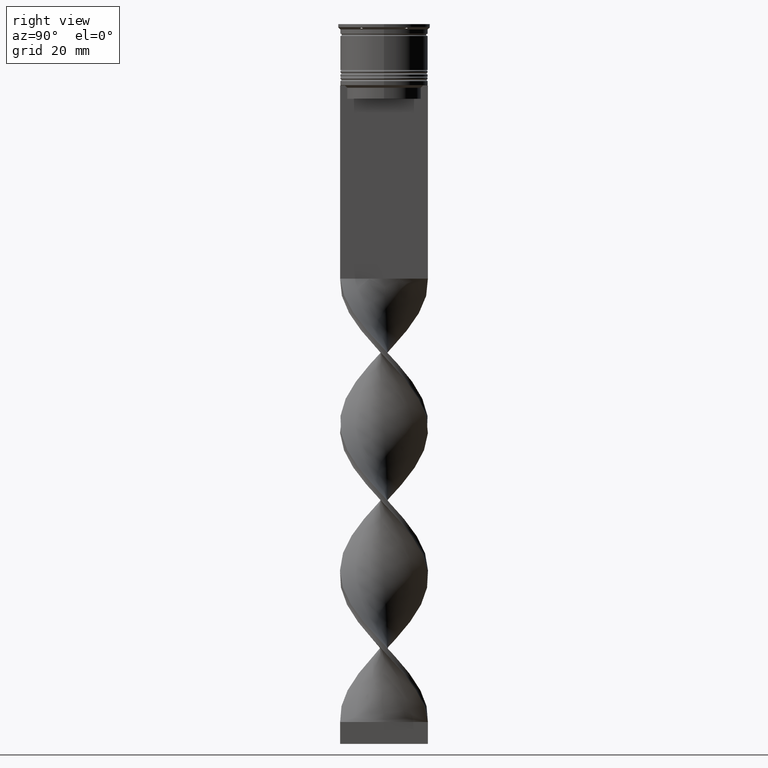
[diagram: clean part render]
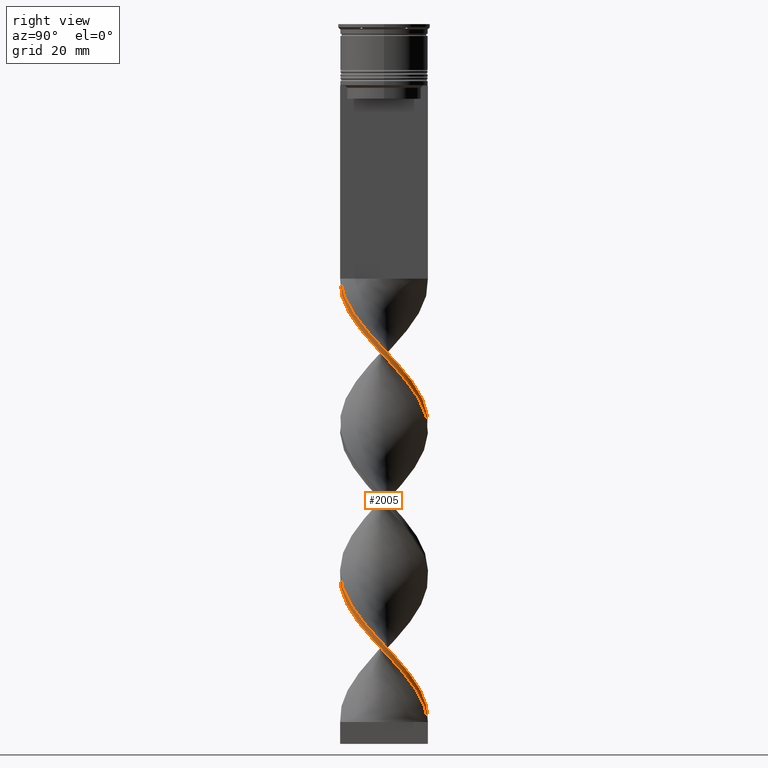
[diagram: same view with one face highlighted and labeled with its STEP entity id]
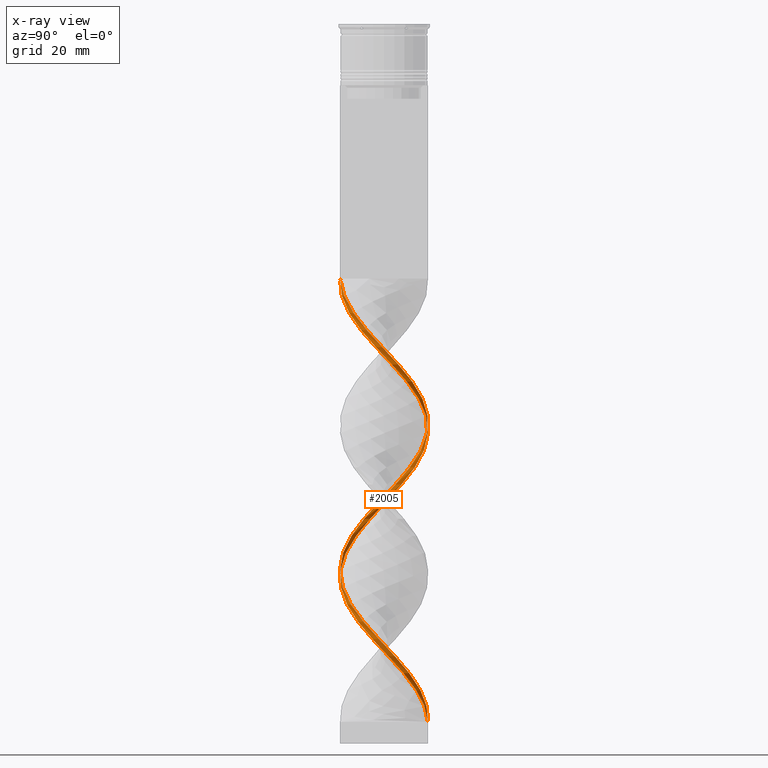
[diagram: x-ray of the same camera — body ghosted, the highlighted face saturated]
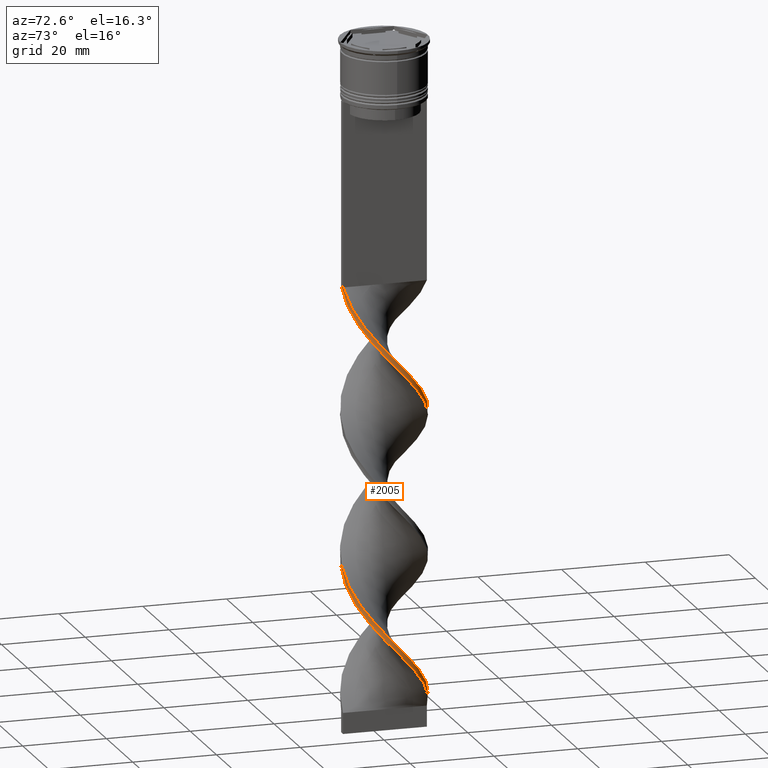
[diagram: same view with one face highlighted and labeled with its STEP entity id]
A machine part, right view. The second image highlights one B-rep face of the part: STEP entity #2005.
The next image is the same camera in x-ray: the body ghosted, the highlighted face saturated — about 1% of this face is hidden behind the body in this view.
A second angle (auxiliary view) of the same face is appended — the face is thin or edge-on in the first view.
In plain terms, the highlighted face is a freeform B-spline surface patch.
Its self-contained STEP definition (entity closure, byte-faithful):
#6 = CARTESIAN_POINT ( 'NONE',  ( -8.578000064855068274, 5.300124413240425270, -101.7666666666666515 ) ) ;
#10 = CARTESIAN_POINT ( 'NONE',  ( 2.389970062597715383, -9.795991374453498324, -61.36666666666666003 ) ) ;
#27 = CARTESIAN_POINT ( 'NONE',  ( -9.278802417170330941, -3.803462330970838856, -111.8666666666666742 ) ) ;
#29 = CARTESIAN_POINT ( 'NONE',  ( 3.382207337526053514, -9.440507058732864110, -62.48888888888889426 ) ) ;
#35 = ORIENTED_EDGE ( 'NONE', *, *, #556, .T. ) ;
#36 = CARTESIAN_POINT ( 'NONE',  ( 7.933296209543089006, -6.133947444480539524, -66.97777777777777430 ) ) ;
#48 = CARTESIAN_POINT ( 'NONE',  ( -0.3010423526567735375, -10.07882817644926376, -124.2111111111111370 ) ) ;
#67 = VECTOR ( 'NONE', #1589, 1000.000000000000000 ) ;
#70 = CARTESIAN_POINT ( 'NONE',  ( 1.801042352656767820, 9.921171823550748670, -157.8777777777777942 ) ) ;
#71 = CARTESIAN_POINT ( 'NONE',  ( 6.929600300004804758, 7.248664682696628780, -150.0222222222222115 ) ) ;
#76 = CARTESIAN_POINT ( 'NONE',  ( -7.288592354231117731, -6.967770475720650225, -117.4777777777777885 ) ) ;
#91 = CARTESIAN_POINT ( 'NONE',  ( -8.879042417511829655, 4.778703763208845601, -104.0111111111111200 ) ) ;
#96 = CARTESIAN_POINT ( 'NONE',  ( -6.167734941832652140, 7.976995022925438050, -99.52222222222223991 ) ) ;
#99 = CARTESIAN_POINT ( 'NONE',  ( 2.812727608727948247, -9.625542239224740726, -60.24444444444444713 ) ) ;
#106 = CARTESIAN_POINT ( 'NONE',  ( 9.866822606231998805, 1.791176054202738843, -143.2888888888889198 ) ) ;
#111 = CARTESIAN_POINT ( 'NONE',  ( 1.345506207627239936, -9.937409775451381932, -127.5777777777777828 ) ) ;
#115 = CARTESIAN_POINT ( 'NONE',  ( 0.7500000000000001110, -10.00000000000000533, -58.00000000000000000 ) ) ;
#117 = CARTESIAN_POINT ( 'NONE',  ( -5.680638183180775513, 8.330891533339592314, -97.27777777777779988 ) ) ;
#126 = CARTESIAN_POINT ( 'NONE',  ( 8.879042417511834984, 4.778703763208838495, -146.6555555555555657 ) ) ;
#133 = CARTESIAN_POINT ( 'NONE',  ( -9.278802417170329164, 3.803462330970842409, -105.1333333333333400 ) ) ;
#139 = CARTESIAN_POINT ( 'NONE',  ( 6.167734941832656581, 7.976995022925434498, -151.1444444444444457 ) ) ;
#146 = CARTESIAN_POINT ( 'NONE',  ( 10.05508279563516716, -0.7541312096726379144, -74.83333333333334281 ) ) ;
#171 = CARTESIAN_POINT ( 'NONE',  ( 10.02361530113347854, -0.2993932111503322391, -141.0444444444444514 ) ) ;
#181 = CARTESIAN_POINT ( 'NONE',  ( -10.05508279563516716, 0.7541312096726391356, -108.5000000000000000 ) ) ;
#193 = CARTESIAN_POINT ( 'NONE',  ( 2.812727608727948247, -9.625542239224740726, -60.24444444444444713 ) ) ;
#196 = CARTESIAN_POINT ( 'NONE',  ( -9.278802417170330941, -3.803462330970838856, -111.8666666666666742 ) ) ;
#208 = CARTESIAN_POINT ( 'NONE',  ( 8.879042417511833207, -4.778703763208840272, -137.6777777777777487 ) ) ;
#221 = CARTESIAN_POINT ( 'NONE',  ( -4.374444612454396974, -9.085022743012226343, -119.7222222222222143 ) ) ;
#231 = CARTESIAN_POINT ( 'NONE',  ( 4.752525523989956646, 8.830402094119161660, -154.5111111111111200 ) ) ;
#287 = CARTESIAN_POINT ( 'NONE',  ( -3.382207337526060620, -9.440507058732860557, -120.8444444444444485 ) ) ;
#289 = CARTESIAN_POINT ( 'NONE',  ( 7.691465658176951159, -6.520334342467825728, -68.10000000000000853 ) ) ;
#306 = CARTESIAN_POINT ( 'NONE',  ( 6.929600300004804758, 7.248664682696628780, -82.68888888888889710 ) ) ;
#309 = CARTESIAN_POINT ( 'NONE',  ( 1.345506207627239936, -9.937409775451381932, -60.24444444444444713 ) ) ;
#324 = CARTESIAN_POINT ( 'NONE',  ( -7.288592354231109738, 6.967770475720659107, -99.52222222222223991 ) ) ;
#347 = CARTESIAN_POINT ( 'NONE',  ( 5.680638183180779954, 8.330891533339588761, -153.3888888888889142 ) ) ;
#348 = CARTESIAN_POINT ( 'NONE',  ( 0.3010423526567679309, 10.07882817644926376, -90.54444444444445139 ) ) ;
#368 = CARTESIAN_POINT ( 'NONE',  ( 2.812727608727948247, -9.625542239224740726, -127.5777777777777828 ) ) ;
#372 = CARTESIAN_POINT ( 'NONE',  ( -0.7499999999999998890, -10.00000000000000533, -58.00000000000000000 ) ) ;
#388 = CARTESIAN_POINT ( 'NONE',  ( -5.271089777143522781, 8.531008882968833973, -98.40000000000001990 ) ) ;
#392 = CARTESIAN_POINT ( 'NONE',  ( 10.02361530113347854, 0.2993932111503289084, -143.2888888888889198 ) ) ;
#399 = CARTESIAN_POINT ( 'NONE',  ( 1.345506207627244155, 9.937409775451381932, -89.42222222222223138 ) ) ;
#411 = CARTESIAN_POINT ( 'NONE',  ( -7.691465658176949383, 6.520334342467825728, -101.7666666666666515 ) ) ;
#415 = CARTESIAN_POINT ( 'NONE',  ( 9.492508010833715204, 3.400837481082922498, -146.6555555555555657 ) ) ;
#427 = CARTESIAN_POINT ( 'NONE',  ( 8.879042417511833207, -4.778703763208840272, -70.34444444444443434 ) ) ;
#431 = CARTESIAN_POINT ( 'NONE',  ( -8.879042417511829655, 4.778703763208845601, -104.0111111111111057 ) ) ;
#443 = CARTESIAN_POINT ( 'NONE',  ( 4.752525523989956646, 8.830402094119161660, -87.17777777777779136 ) ) ;
#447 = CARTESIAN_POINT ( 'NONE',  ( 9.278802417170329164, -3.803462330970841521, -138.8000000000000114 ) ) ;
#460 = CARTESIAN_POINT ( 'NONE',  ( 6.167734941832655693, 7.976995022925434498, -151.1444444444444457 ) ) ;
#469 = CARTESIAN_POINT ( 'NONE',  ( -9.035254037844390851, 4.350480947161678102, -102.8888888888888857 ) ) ;
#481 = CARTESIAN_POINT ( 'NONE',  ( 7.691465658176951159, 6.520334342467823951, -148.8999999999999773 ) ) ;
#492 = CARTESIAN_POINT ( 'NONE',  ( 2.389970062597715383, -9.795991374453498324, -128.6999999999999886 ) ) ;
#500 = CARTESIAN_POINT ( 'NONE',  ( 8.578000064855070050, -5.300124413240424381, -135.4333333333333371 ) ) ;
#512 = CARTESIAN_POINT ( 'NONE',  ( 3.824412864799132450, 9.329912654898736335, -155.6333333333333258 ) ) ;
#517 = CARTESIAN_POINT ( 'NONE',  ( -0.7499999999999988898, 10.00000000000000533, -159.0000000000000000 ) ) ;
#523 = CARTESIAN_POINT ( 'NONE',  ( -8.578000064855068274, 5.300124413240425270, -101.7666666666666515 ) ) ;
#537 = CARTESIAN_POINT ( 'NONE',  ( -7.933296209543092559, -6.133947444480535971, -116.3555555555555685 ) ) ;
#552 = CARTESIAN_POINT ( 'NONE',  ( 9.742327908732752562, 2.376877556528110169, -145.5333333333333599 ) ) ;
#556 = EDGE_CURVE ( 'NONE', #2036, #1169, #2548, .T. ) ;
#577 = CARTESIAN_POINT ( 'NONE',  ( -9.678562416828828674, -2.828220898732835220, -110.7444444444444542 ) ) ;
#583 = CARTESIAN_POINT ( 'NONE',  ( 0.2500000000000011102, 10.00000000000000533, -159.0000000000000000 ) ) ;
#599 = CARTESIAN_POINT ( 'NONE',  ( 6.484615268705946178, 7.649331004530122158, -152.2666666666666799 ) ) ;
#600 = CARTESIAN_POINT ( 'NONE',  ( 10.05508279563516716, 0.7541312096726368042, -74.83333333333334281 ) ) ;
#604 = CARTESIAN_POINT ( 'NONE',  ( 9.035254037844392627, 4.350480947161671885, -80.44444444444445708 ) ) ;
#619 = CARTESIAN_POINT ( 'NONE',  ( 0.7500000000000001110, -10.00000000000000533, -125.3333333333333570 ) ) ;
#635 = CARTESIAN_POINT ( 'NONE',  ( 7.933296209543089006, -6.133947444480539524, -66.97777777777777430 ) ) ;
#659 = CARTESIAN_POINT ( 'NONE',  ( -7.691465658176951159, -6.520334342467823063, -115.2333333333333343 ) ) ;
#674 = CARTESIAN_POINT ( 'NONE',  ( 8.285254037844389075, -5.649519052838332556, -69.22222222222222854 ) ) ;
#678 = CARTESIAN_POINT ( 'NONE',  ( -9.492508010833716980, -3.400837481082918501, -112.9888888888888943 ) ) ;
#682 = CARTESIAN_POINT ( 'NONE',  ( 6.484615268705944402, -7.649331004530123934, -64.73333333333333428 ) ) ;
#691 = CARTESIAN_POINT ( 'NONE',  ( 4.374444612454390757, -9.085022743012229895, -63.61111111111111427 ) ) ;
#695 = CARTESIAN_POINT ( 'NONE',  ( 10.05508279563516716, -0.7541312096726379144, -142.1666666666666856 ) ) ;
#700 = CARTESIAN_POINT ( 'NONE',  ( 9.492508010833715204, -3.400837481082924718, -70.34444444444444855 ) ) ;
#709 = CARTESIAN_POINT ( 'NONE',  ( 9.866822606231998805, -1.791176054202742174, -73.71111111111112280 ) ) ;
#713 = CARTESIAN_POINT ( 'NONE',  ( -3.824412864799134226, -9.329912654898734559, -121.9666666666666544 ) ) ;
#716 = CARTESIAN_POINT ( 'NONE',  ( 2.389970062597715827, 9.795991374453498324, -88.29999999999998295 ) ) ;
#725 = CARTESIAN_POINT ( 'NONE',  ( 7.288592354231114179, 6.967770475720654666, -83.81111111111111711 ) ) ;
#729 = CARTESIAN_POINT ( 'NONE',  ( -8.578000064855068274, -5.300124413240421717, -115.2333333333333343 ) ) ;
#733 = CARTESIAN_POINT ( 'NONE',  ( 9.492508010833715204, -3.400837481082924718, -137.6777777777777487 ) ) ;
#740 = CARTESIAN_POINT ( 'NONE',  ( 1.345506207627244155, 9.937409775451381932, -156.7555555555555600 ) ) ;
#748 = CARTESIAN_POINT ( 'NONE',  ( -10.05508279563516716, -0.7541312096726355829, -108.5000000000000000 ) ) ;
#759 = CARTESIAN_POINT ( 'NONE',  ( 9.035254037844392627, 4.350480947161671885, -147.7777777777777715 ) ) ;
#772 = CARTESIAN_POINT ( 'NONE',  ( -10.02361530113348032, 0.2993932111503379012, -107.3777777777777942 ) ) ;
#781 = CARTESIAN_POINT ( 'NONE',  ( -9.866822606231997028, 1.791176054202747725, -107.3777777777777942 ) ) ;
#788 = ORIENTED_EDGE ( 'NONE', *, *, #939, .T. ) ;
#789 = CARTESIAN_POINT ( 'NONE',  ( 8.285254037844390851, 5.649519052838329891, -147.7777777777777715 ) ) ;
#799 = CARTESIAN_POINT ( 'NONE',  ( 10.02361530113347854, 0.2993932111503289084, -143.2888888888889198 ) ) ;
#805 = CARTESIAN_POINT ( 'NONE',  ( 9.278802417170330941, 3.803462330970840632, -145.5333333333333599 ) ) ;
#819 = CARTESIAN_POINT ( 'NONE',  ( 8.285254037844389075, -5.649519052838332556, -136.5555555555555713 ) ) ;
#885 = CARTESIAN_POINT ( 'NONE',  ( 9.492508010833713428, -3.400837481082924718, -70.34444444444443434 ) ) ;
#891 = CARTESIAN_POINT ( 'NONE',  ( 9.742327908732752562, 2.376877556528110169, -78.20000000000000284 ) ) ;
#909 = CARTESIAN_POINT ( 'NONE',  ( -10.05508279563516716, -0.7541312096726356939, -108.5000000000000000 ) ) ;
#912 = CARTESIAN_POINT ( 'NONE',  ( 0.3010423526567652663, -10.07882817644926376, -59.12222222222222712 ) ) ;
#929 = CARTESIAN_POINT ( 'NONE',  ( -10.02361530113348032, 0.2993932111503379012, -107.3777777777777942 ) ) ;
#939 = EDGE_CURVE ( 'NONE', #3363, #2036, #2531, .T. ) ;
#946 = CARTESIAN_POINT ( 'NONE',  ( 7.288592354231114179, 6.967770475720654666, -151.1444444444444457 ) ) ;
#947 = CARTESIAN_POINT ( 'NONE',  ( 9.035254037844390851, -4.350480947161673662, -69.22222222222222854 ) ) ;
#970 = CARTESIAN_POINT ( 'NONE',  ( -0.7499999999999988898, 10.00000000000000533, -159.0000000000000000 ) ) ;
#973 = CARTESIAN_POINT ( 'NONE',  ( -9.035254037844394404, -4.350480947161666556, -114.1111111111111285 ) ) ;
#979 = CARTESIAN_POINT ( 'NONE',  ( 5.271089777143525446, 8.531008882968833973, -84.93333333333333712 ) ) ;
#985 = CARTESIAN_POINT ( 'NONE',  ( 9.742327908732750785, -2.376877556528111057, -138.8000000000000114 ) ) ;
#989 = CARTESIAN_POINT ( 'NONE',  ( 1.801042352656767820, 9.921171823550748670, -90.54444444444445139 ) ) ;
#993 = CARTESIAN_POINT ( 'NONE',  ( -2.812727608727946027, 9.625542239224740726, -93.91111111111111143 ) ) ;
#999 = CARTESIAN_POINT ( 'NONE',  ( -9.678562416828825121, 2.828220898732847211, -106.2555555555555742 ) ) ;
#1005 = CARTESIAN_POINT ( 'NONE',  ( -10.05508279563516716, 0.7541312096726390246, -108.5000000000000000 ) ) ;
#1011 = CARTESIAN_POINT ( 'NONE',  ( 9.992147806631788143, -1.352917631973299173, -72.58888888888890278 ) ) ;
#1020 = VERTEX_POINT ( 'NONE', #517 ) ;
#1024 = CARTESIAN_POINT ( 'NONE',  ( 7.691465658176951159, -6.520334342467825728, -68.10000000000002274 ) ) ;
#1029 = CARTESIAN_POINT ( 'NONE',  ( -0.7499999999999998890, -10.00000000000000533, -125.3333333333333570 ) ) ;
#1033 = CARTESIAN_POINT ( 'NONE',  ( -8.879042417511836760, -4.778703763208834943, -112.9888888888888943 ) ) ;
#1042 = CARTESIAN_POINT ( 'NONE',  ( 0.7500000000000011102, 10.00000000000000533, -91.66666666666667140 ) ) ;
#1049 = CARTESIAN_POINT ( 'NONE',  ( 8.879042417511834984, 4.778703763208838495, -146.6555555555555657 ) ) ;
#1057 = CARTESIAN_POINT ( 'NONE',  ( -9.035254037844394404, -4.350480947161666556, -114.1111111111111285 ) ) ;
#1067 = CARTESIAN_POINT ( 'NONE',  ( 3.824412864799132006, -9.329912654898734559, -128.7000000000000171 ) ) ;
#1077 = CARTESIAN_POINT ( 'NONE',  ( -3.824412864799134226, -9.329912654898736335, -121.9666666666666544 ) ) ;
#1089 = CARTESIAN_POINT ( 'NONE',  ( 4.752525523989954870, -8.830402094119163436, -129.8222222222222229 ) ) ;
#1095 = CARTESIAN_POINT ( 'NONE',  ( 1.345506207627239936, -9.937409775451381932, -127.5777777777777828 ) ) ;
#1101 = CARTESIAN_POINT ( 'NONE',  ( 0.3010423526567678754, 10.07882817644926376, -157.8777777777777942 ) ) ;
#1111 = CARTESIAN_POINT ( 'NONE',  ( -9.742327908732752562, -2.376877556528108837, -111.8666666666666742 ) ) ;
#1169 = VERTEX_POINT ( 'NONE', #3396 ) ;
#1181 = CARTESIAN_POINT ( 'NONE',  ( 9.742327908732750785, -2.376877556528111057, -71.46666666666668277 ) ) ;
#1193 = ORIENTED_EDGE ( 'NONE', *, *, #3086, .F. ) ;
#1197 = CARTESIAN_POINT ( 'NONE',  ( 3.824412864799132450, 9.329912654898734559, -155.6333333333333542 ) ) ;
#1200 = CARTESIAN_POINT ( 'NONE',  ( 1.801042352656765155, -9.921171823550746893, -126.4555555555555628 ) ) ;
#1205 = CARTESIAN_POINT ( 'NONE',  ( 5.680638183180779954, 8.330891533339588761, -86.05555555555557135 ) ) ;
#1222 = CARTESIAN_POINT ( 'NONE',  ( 7.691465658176951159, 6.520334342467823951, -81.56666666666664867 ) ) ;
#1241 = CARTESIAN_POINT ( 'NONE',  ( 3.382207337526056179, 9.440507058732862333, -87.17777777777779136 ) ) ;
#1244 = CARTESIAN_POINT ( 'NONE',  ( 4.374444612454390757, -9.085022743012229895, -63.61111111111112137 ) ) ;
#1249 = CARTESIAN_POINT ( 'NONE',  ( 9.742327908732750785, -2.376877556528111057, -71.46666666666668277 ) ) ;
#1259 = CARTESIAN_POINT ( 'NONE',  ( -6.167734941832660134, -7.976995022925430945, -117.4777777777777885 ) ) ;
#1264 = CARTESIAN_POINT ( 'NONE',  ( 0.7500000000000011102, 10.00000000000000533, -91.66666666666667140 ) ) ;
#1272 = CARTESIAN_POINT ( 'NONE',  ( 9.678562416828828674, 2.828220898732840993, -77.07777777777778283 ) ) ;
#1285 = CARTESIAN_POINT ( 'NONE',  ( 9.678562416828826898, 2.828220898732840549, -144.4111111111111541 ) ) ;
#1289 = CARTESIAN_POINT ( 'NONE',  ( -2.812727608727953577, -9.625542239224740726, -123.0888888888888886 ) ) ;
#1302 = CARTESIAN_POINT ( 'NONE',  ( 3.382207337526056179, 9.440507058732862333, -154.5111111111111200 ) ) ;
#1306 = CARTESIAN_POINT ( 'NONE',  ( -3.382207337526049962, 9.440507058732864110, -96.15555555555556566 ) ) ;
#1317 = CARTESIAN_POINT ( 'NONE',  ( 2.389970062597715827, 9.795991374453498324, -155.6333333333333258 ) ) ;
#1322 = CARTESIAN_POINT ( 'NONE',  ( 3.382207337526053514, -9.440507058732864110, -129.8222222222222229 ) ) ;
#1327 = CARTESIAN_POINT ( 'NONE',  ( 7.288592354231111514, -6.967770475720657330, -65.85555555555555429 ) ) ;
#1339 = CARTESIAN_POINT ( 'NONE',  ( 0.3010423526567652663, -10.07882817644926376, -59.12222222222222712 ) ) ;
#1342 = CARTESIAN_POINT ( 'NONE',  ( 4.752525523989954870, -8.830402094119163436, -62.48888888888889426 ) ) ;
#1345 = CARTESIAN_POINT ( 'NONE',  ( 9.678562416828826898, -2.828220898732844102, -139.9222222222222172 ) ) ;
#1350 = CARTESIAN_POINT ( 'NONE',  ( 5.271089777143525446, 8.531008882968833973, -152.2666666666666799 ) ) ;
#1358 = CARTESIAN_POINT ( 'NONE',  ( 9.035254037844392627, 4.350480947161671885, -80.44444444444445708 ) ) ;
#1363 = CARTESIAN_POINT ( 'NONE',  ( 9.035254037844390851, -4.350480947161673662, -136.5555555555555713 ) ) ;
#1380 = CARTESIAN_POINT ( 'NONE',  ( 9.678562416828828674, 2.828220898732840993, -144.4111111111111256 ) ) ;
#1392 = CARTESIAN_POINT ( 'NONE',  ( -10.02361530113347854, -0.2993932111503254112, -109.6222222222222342 ) ) ;
#1403 = CARTESIAN_POINT ( 'NONE',  ( 7.933296209543089006, -6.133947444480539524, -134.3111111111111313 ) ) ;
#1412 = CARTESIAN_POINT ( 'NONE',  ( 2.812727608727952688, 9.625542239224740726, -156.7555555555555600 ) ) ;
#1425 = CARTESIAN_POINT ( 'NONE',  ( 9.866822606231998805, 1.791176054202738843, -143.2888888888889198 ) ) ;
#1456 = CARTESIAN_POINT ( 'NONE',  ( 9.992147806631789919, 1.352917631973295842, -144.4111111111111541 ) ) ;
#1479 = CARTESIAN_POINT ( 'NONE',  ( 5.680638183180777290, -8.330891533339590538, -63.61111111111111427 ) ) ;
#1485 = CARTESIAN_POINT ( 'NONE',  ( 5.271089777143525446, 8.531008882968833973, -84.93333333333333712 ) ) ;
#1487 = CARTESIAN_POINT ( 'NONE',  ( 8.285254037844389075, -5.649519052838332556, -69.22222222222222854 ) ) ;
#1504 = CARTESIAN_POINT ( 'NONE',  ( 6.167734941832655693, 7.976995022925434498, -83.81111111111111711 ) ) ;
#1516 = CARTESIAN_POINT ( 'NONE',  ( 1.801042352656765155, -9.921171823550746893, -59.12222222222222712 ) ) ;
#1526 = CARTESIAN_POINT ( 'NONE',  ( 9.035254037844390851, -4.350480947161673662, -136.5555555555555713 ) ) ;
#1547 = CARTESIAN_POINT ( 'NONE',  ( -7.933296209543089006, 6.133947444480543076, -100.6444444444444599 ) ) ;
#1566 = CARTESIAN_POINT ( 'NONE',  ( 3.824412864799132006, -9.329912654898736335, -128.6999999999999886 ) ) ;
#1583 = CARTESIAN_POINT ( 'NONE',  ( 7.933296209543092559, 6.133947444480536859, -150.0222222222222115 ) ) ;
#1585 = CARTESIAN_POINT ( 'NONE',  ( 4.374444612454393422, 9.085022743012228119, -153.3888888888889142 ) ) ;
#1589 = DIRECTION ( 'NONE',  ( -1.000000000000000000, 0.000000000000000000, 0.000000000000000000 ) ) ;
#1590 = CARTESIAN_POINT ( 'NONE',  ( -4.374444612454388981, 9.085022743012231672, -97.27777777777779988 ) ) ;
#1596 = CARTESIAN_POINT ( 'NONE',  ( 0.7500000000000001110, -10.00000000000000533, -58.00000000000000000 ) ) ;
#1605 = CARTESIAN_POINT ( 'NONE',  ( 9.992147806631789919, 1.352917631973295842, -77.07777777777778283 ) ) ;
#1609 = CARTESIAN_POINT ( 'NONE',  ( 9.035254037844392627, 4.350480947161671885, -147.7777777777777715 ) ) ;
#1622 = CARTESIAN_POINT ( 'NONE',  ( 9.992147806631789919, -1.352917631973299173, -139.9222222222222172 ) ) ;
#1626 = CARTESIAN_POINT ( 'NONE',  ( -9.678562416828825121, 2.828220898732847655, -106.2555555555555742 ) ) ;
#1629 = CARTESIAN_POINT ( 'NONE',  ( -1.801042352656761381, 9.921171823550750446, -92.78888888888889142 ) ) ;
#1636 = CARTESIAN_POINT ( 'NONE',  ( 3.824412864799132450, 9.329912654898736335, -88.29999999999998295 ) ) ;
#1642 = CARTESIAN_POINT ( 'NONE',  ( -6.929600300004800317, 7.248664682696634110, -100.6444444444444599 ) ) ;
#1645 = B_SPLINE_CURVE_WITH_KNOTS ( 'NONE', 3,
 ( #3007, #3244, #583, #2965 ),
 .UNSPECIFIED., .F., .F.,
 ( 4, 4 ),
 ( 0.000000000000000000, 1.000000000000000000 ),
 .UNSPECIFIED. ) ;
#1662 = CARTESIAN_POINT ( 'NONE',  ( 6.929600300004801205, -7.248664682696631445, -66.97777777777777430 ) ) ;
#1667 = FACE_OUTER_BOUND ( 'NONE', #2630, .T. ) ;
#1670 = CARTESIAN_POINT ( 'NONE',  ( -7.933296209543089006, 6.133947444480543076, -100.6444444444444599 ) ) ;
#1675 = CARTESIAN_POINT ( 'NONE',  ( 5.271089777143523669, -8.531008882968833973, -132.0666666666666629 ) ) ;
#1684 = CARTESIAN_POINT ( 'NONE',  ( -9.492508010833711651, 3.400837481082930491, -104.0111111111111057 ) ) ;
#1693 = CARTESIAN_POINT ( 'NONE',  ( 4.374444612454390757, -9.085022743012229895, -130.9444444444444287 ) ) ;
#1699 = CARTESIAN_POINT ( 'NONE',  ( 2.389970062597715827, 9.795991374453498324, -155.6333333333333542 ) ) ;
#1714 = CARTESIAN_POINT ( 'NONE',  ( -1.801042352656773593, -9.921171823550746893, -124.2111111111111370 ) ) ;
#1725 = CARTESIAN_POINT ( 'NONE',  ( -7.691465658176951159, -6.520334342467823063, -115.2333333333333343 ) ) ;
#1732 = CARTESIAN_POINT ( 'NONE',  ( -5.680638183180781731, -8.330891533339586985, -119.7222222222222143 ) ) ;
#1780 = CARTESIAN_POINT ( 'NONE',  ( -5.680638183180775513, 8.330891533339592314, -97.27777777777778567 ) ) ;
#1786 = CARTESIAN_POINT ( 'NONE',  ( 6.167734941832653917, -7.976995022925438050, -65.85555555555555429 ) ) ;
#1803 = CARTESIAN_POINT ( 'NONE',  ( -9.992147806631789919, 1.352917631973302282, -106.2555555555555742 ) ) ;
#1805 = CARTESIAN_POINT ( 'NONE',  ( 8.578000064855070050, 5.300124413240422605, -81.56666666666666288 ) ) ;
#1820 = CARTESIAN_POINT ( 'NONE',  ( -9.742327908732750785, 2.376877556528111946, -105.1333333333333400 ) ) ;
#1842 = CARTESIAN_POINT ( 'NONE',  ( 2.812727608727952688, 9.625542239224740726, -156.7555555555555600 ) ) ;
#1845 = CARTESIAN_POINT ( 'NONE',  ( 4.374444612454393422, 9.085022743012228119, -86.05555555555557135 ) ) ;
#1865 = CARTESIAN_POINT ( 'NONE',  ( -6.929600300004805646, -7.248664682696627892, -116.3555555555555685 ) ) ;
#1878 = CARTESIAN_POINT ( 'NONE',  ( -3.382207337526049962, 9.440507058732864110, -96.15555555555556566 ) ) ;
#1881 = CARTESIAN_POINT ( 'NONE',  ( 6.167734941832653917, -7.976995022925438050, -133.1888888888889255 ) ) ;
#1886 = CARTESIAN_POINT ( 'NONE',  ( 4.374444612454394310, 9.085022743012228119, -86.05555555555557135 ) ) ;
#1897 = CARTESIAN_POINT ( 'NONE',  ( 6.484615268705946178, 7.649331004530122158, -84.93333333333333712 ) ) ;
#1902 = CARTESIAN_POINT ( 'NONE',  ( 9.992147806631788143, 1.352917631973295620, -144.4111111111111256 ) ) ;
#1920 = CARTESIAN_POINT ( 'NONE',  ( -1.345506207627237716, 9.937409775451381932, -93.91111111111111143 ) ) ;
#1923 = CARTESIAN_POINT ( 'NONE',  ( -10.02361530113347854, -0.2993932111503254112, -109.6222222222222342 ) ) ;
#1926 = CARTESIAN_POINT ( 'NONE',  ( -0.7499999999999988898, 10.00000000000000533, -91.66666666666667140 ) ) ;
#1933 = CARTESIAN_POINT ( 'NONE',  ( 5.271089777143523669, -8.531008882968833973, -64.73333333333333428 ) ) ;
#1939 = CARTESIAN_POINT ( 'NONE',  ( -5.271089777143522781, 8.531008882968833973, -98.40000000000001990 ) ) ;
#1942 = CARTESIAN_POINT ( 'NONE',  ( 9.742327908732750785, -2.376877556528111057, -138.8000000000000114 ) ) ;
#1947 = CARTESIAN_POINT ( 'NONE',  ( 2.389970062597715383, -9.795991374453498324, -61.36666666666666003 ) ) ;
#1948 = ORIENTED_EDGE ( 'NONE', *, *, #2897, .F. ) ;
#1956 = CARTESIAN_POINT ( 'NONE',  ( -6.929600300004805646, -7.248664682696627892, -116.3555555555555685 ) ) ;
#1959 =( BOUNDED_SURFACE ( )  B_SPLINE_SURFACE ( 1, 2, ( 
 ( #115, #1516, #193, #2342, #1342, #1479, #3358, #2111, #635, #3898, #947, #885, #1181, #3006, #3917, #600, #3276, #3046, #3362, #2065, #2129, #1222, #306, #1504, #1485, #1845, #1241, #2447, #3681, #348, #2700, #3322, #2385, #2741, #2151, #1780, #2428, #324, #1547, #6, #3640, #3339, #1820, #1803, #929, #909, #3658, #577, #27, #2783, #2719, #659, #1865, #1259, #2763, #2986, #287, #3593, #3064, #48, #619, #1200, #368, #1566, #2470, #2089, #3303, #2408, #3621, #3021, #1526, #2832, #985, #1622, #2207, #3733, #106, #1285, #2848, #126, #3121, #3698, #71, #460, #3452, #1585, #1302, #1317, #740, #3100, #970 ),
 ( #2193, #1339, #2865, #1947, #3398, #691, #1933, #2232, #1662, #1024, #674, #427, #2527, #2492, #709, #146, #3438, #1605, #3151, #3381, #1358, #2176, #3134, #725, #1897, #3751, #443, #1636, #2509, #2550, #1042, #2246, #1920, #2565, #1878, #3078, #388, #3420, #2800, #411, #2816, #91, #3712, #999, #781, #181, #1392, #2919, #1111, #1982, #1057, #3234, #537, #2603, #3492, #1732, #2646, #1077, #3527, #1714, #3807, #3192, #1095, #492, #3252, #1693, #1675, #1967, #2893, #2045, #819, #208, #2281, #3467, #2259, #2300, #799, #1456, #552, #2880, #759, #2001, #2938, #3173, #3211, #3509, #231, #512, #1412, #2622, #3823 ) ),
 .UNSPECIFIED., .F., .F., .F. ) 
 B_SPLINE_SURFACE_WITH_KNOTS ( ( 2, 2 ),
 ( 3, 2, 2, 2, 2, 2, 2, 2, 2, 2, 2, 2, 2, 2, 2, 2, 2, 2, 2, 2, 2, 2, 2, 2, 2, 2, 2, 2, 2, 2, 2, 2, 2, 2, 2, 2, 2, 2, 2, 2, 2, 2, 2, 2, 2, 3 ),
 ( 0.000000000000000000, 1.000000000000000000 ),
 ( 0.000000000000000000, 0.01666666666666666644, 0.03333333333333333287, 0.05000000000000000278, 0.06666666666666666574, 0.08333333333333332871, 0.1000000000000000056, 0.1166666666666666685, 0.1333333333333333315, 0.1499999999999999944, 0.1666666666666666574, 0.1833333333333333204, 0.2000000000000000111, 0.2166666666666666741, 0.2333333333333333370, 0.2500000000000000000, 0.2666666666666666630, 0.2833333333333333259, 0.2999999999999999889, 0.3166666666666666519, 0.3333333333333333148, 0.3499999999999999778, 0.3666666666666666408, 0.3833333333333333592, 0.4000000000000000222, 0.4166666666666666852, 0.4333333333333333481, 0.4500000000000000111, 0.4666666666666666741, 0.4833333333333333370, 0.5000000000000000000, 0.5166666666666667185, 0.5333333333333333259, 0.5500000000000000444, 0.5666666666666666519, 0.5833333333333333703, 0.5999999999999999778, 0.6166666666666666963, 0.6333333333333333037, 0.6500000000000000222, 0.6666666666666666297, 0.6833333333333333481, 0.6999999999999999556, 0.7166666666666666741, 0.7333333333333332815, 0.7500000000000000000 ),
 .UNSPECIFIED. ) 
 GEOMETRIC_REPRESENTATION_ITEM ( )  RATIONAL_B_SPLINE_SURFACE ( (
 ( 1.000000000000000000, 0.9945218953682732899, 1.000000000000000000, 0.9945218953682732899, 1.000000000000000000, 0.9945218953682732899, 1.000000000000000000, 0.9945218953682732899, 1.000000000000000000, 0.9945218953682732899, 1.000000000000000000, 0.9945218953682732899, 1.000000000000000000, 0.9945218953682732899, 1.000000000000000000, 0.9945218953682732899, 1.000000000000000000, 0.9945218953682732899, 1.000000000000000000, 0.9945218953682732899, 1.000000000000000000, 0.9945218953682732899, 1.000000000000000000, 0.9945218953682732899, 1.000000000000000000, 0.9945218953682732899, 1.000000000000000000, 0.9945218953682732899, 1.000000000000000000, 0.9945218953682732899, 1.000000000000000000, 0.9945218953682732899, 1.000000000000000000, 0.9945218953682732899, 1.000000000000000000, 0.9945218953682732899, 1.000000000000000000, 0.9945218953682732899, 1.000000000000000000, 0.9945218953682732899, 1.000000000000000000, 0.9945218953682732899, 1.000000000000000000, 0.9945218953682732899, 1.000000000000000000, 0.9945218953682732899, 1.000000000000000000, 0.9945218953682732899, 1.000000000000000000, 0.9945218953682732899, 1.000000000000000000, 0.9945218953682732899, 1.000000000000000000, 0.9945218953682732899, 1.000000000000000000, 0.9945218953682732899, 1.000000000000000000, 0.9945218953682732899, 1.000000000000000000, 0.9945218953682732899, 1.000000000000000000, 0.9945218953682732899, 1.000000000000000000, 0.9945218953682732899, 1.000000000000000000, 0.9945218953682732899, 1.000000000000000000, 0.9945218953682732899, 1.000000000000000000, 0.9945218953682732899, 1.000000000000000000, 0.9945218953682732899, 1.000000000000000000, 0.9945218953682732899, 1.000000000000000000, 0.9945218953682732899, 1.000000000000000000, 0.9945218953682732899, 1.000000000000000000, 0.9945218953682732899, 1.000000000000000000, 0.9945218953682732899, 1.000000000000000000, 0.9945218953682732899, 1.000000000000000000, 0.9945218953682732899, 1.000000000000000000, 0.9945218953682732899, 1.000000000000000000, 0.9945218953682732899, 1.000000000000000000),
 ( 1.000000000000000000, 0.9945218953682732899, 1.000000000000000000, 0.9945218953682732899, 1.000000000000000000, 0.9945218953682732899, 1.000000000000000000, 0.9945218953682732899, 1.000000000000000000, 0.9945218953682732899, 1.000000000000000000, 0.9945218953682732899, 1.000000000000000000, 0.9945218953682732899, 1.000000000000000000, 0.9945218953682732899, 1.000000000000000000, 0.9945218953682732899, 1.000000000000000000, 0.9945218953682732899, 1.000000000000000000, 0.9945218953682732899, 1.000000000000000000, 0.9945218953682732899, 1.000000000000000000, 0.9945218953682732899, 1.000000000000000000, 0.9945218953682732899, 1.000000000000000000, 0.9945218953682732899, 1.000000000000000000, 0.9945218953682732899, 1.000000000000000000, 0.9945218953682732899, 1.000000000000000000, 0.9945218953682732899, 1.000000000000000000, 0.9945218953682732899, 1.000000000000000000, 0.9945218953682732899, 1.000000000000000000, 0.9945218953682732899, 1.000000000000000000, 0.9945218953682732899, 1.000000000000000000, 0.9945218953682732899, 1.000000000000000000, 0.9945218953682732899, 1.000000000000000000, 0.9945218953682732899, 1.000000000000000000, 0.9945218953682732899, 1.000000000000000000, 0.9945218953682732899, 1.000000000000000000, 0.9945218953682732899, 1.000000000000000000, 0.9945218953682732899, 1.000000000000000000, 0.9945218953682732899, 1.000000000000000000, 0.9945218953682732899, 1.000000000000000000, 0.9945218953682732899, 1.000000000000000000, 0.9945218953682732899, 1.000000000000000000, 0.9945218953682732899, 1.000000000000000000, 0.9945218953682732899, 1.000000000000000000, 0.9945218953682732899, 1.000000000000000000, 0.9945218953682732899, 1.000000000000000000, 0.9945218953682732899, 1.000000000000000000, 0.9945218953682732899, 1.000000000000000000, 0.9945218953682732899, 1.000000000000000000, 0.9945218953682732899, 1.000000000000000000, 0.9945218953682732899, 1.000000000000000000, 0.9945218953682732899, 1.000000000000000000, 0.9945218953682732899, 1.000000000000000000, 0.9945218953682732899, 1.000000000000000000) ) ) 
 REPRESENTATION_ITEM ( '' )  SURFACE ( )  );
#1967 = CARTESIAN_POINT ( 'NONE',  ( 6.167734941832653028, -7.976995022925438050, -133.1888888888889255 ) ) ;
#1974 = CARTESIAN_POINT ( 'NONE',  ( 1.801042352656765155, -9.921171823550748670, -126.4555555555555770 ) ) ;
#1982 = CARTESIAN_POINT ( 'NONE',  ( -9.492508010833716980, -3.400837481082918501, -112.9888888888888943 ) ) ;
#1984 = CARTESIAN_POINT ( 'NONE',  ( 0.7500000000000001110, -10.00000000000000533, -58.00000000000000000 ) ) ;
#1990 = CARTESIAN_POINT ( 'NONE',  ( 4.374444612454394310, 9.085022743012228119, -153.3888888888889142 ) ) ;
#2001 = CARTESIAN_POINT ( 'NONE',  ( 8.578000064855068274, 5.300124413240422605, -148.8999999999999488 ) ) ;
#2005 = ADVANCED_FACE ( 'NONE', ( #1667 ), #1959, .T. ) ;
#2036 = VERTEX_POINT ( 'NONE', #3553 ) ;
#2045 = CARTESIAN_POINT ( 'NONE',  ( 7.691465658176951159, -6.520334342467825728, -135.4333333333333371 ) ) ;
#2065 = CARTESIAN_POINT ( 'NONE',  ( 8.879042417511834984, 4.778703763208838495, -79.32222222222222285 ) ) ;
#2089 = CARTESIAN_POINT ( 'NONE',  ( 5.680638183180777290, -8.330891533339590538, -130.9444444444444287 ) ) ;
#2111 = CARTESIAN_POINT ( 'NONE',  ( 7.288592354231111514, -6.967770475720657330, -65.85555555555555429 ) ) ;
#2115 = CARTESIAN_POINT ( 'NONE',  ( 10.05508279563516716, -0.7541312096726379144, -74.83333333333332860 ) ) ;
#2129 = CARTESIAN_POINT ( 'NONE',  ( 8.285254037844390851, 5.649519052838329891, -80.44444444444445708 ) ) ;
#2149 = CARTESIAN_POINT ( 'NONE',  ( 8.578000064855070050, 5.300124413240422605, -148.8999999999999773 ) ) ;
#2151 = CARTESIAN_POINT ( 'NONE',  ( -4.752525523989951317, 8.830402094119165213, -96.15555555555556566 ) ) ;
#2166 = CARTESIAN_POINT ( 'NONE',  ( 10.02361530113347854, -0.2993932111503322391, -73.71111111111112280 ) ) ;
#2176 = CARTESIAN_POINT ( 'NONE',  ( 8.578000064855068274, 5.300124413240422605, -81.56666666666664867 ) ) ;
#2179 = CARTESIAN_POINT ( 'NONE',  ( -9.866822606231997028, 1.791176054202747725, -107.3777777777777942 ) ) ;
#2186 = CARTESIAN_POINT ( 'NONE',  ( 9.035254037844390851, -4.350480947161673662, -69.22222222222222854 ) ) ;
#2193 = CARTESIAN_POINT ( 'NONE',  ( -0.7499999999999998890, -10.00000000000000533, -58.00000000000000000 ) ) ;
#2197 = CARTESIAN_POINT ( 'NONE',  ( -1.345506207627237716, 9.937409775451381932, -93.91111111111111143 ) ) ;
#2199 = CARTESIAN_POINT ( 'NONE',  ( -4.752525523989951317, 8.830402094119165213, -96.15555555555556566 ) ) ;
#2207 = CARTESIAN_POINT ( 'NONE',  ( 10.02361530113347854, -0.2993932111503322391, -141.0444444444444514 ) ) ;
#2215 = CARTESIAN_POINT ( 'NONE',  ( -6.484615268705947067, -7.649331004530122158, -118.6000000000000085 ) ) ;
#2219 = CARTESIAN_POINT ( 'NONE',  ( 3.382207337526056179, 9.440507058732862333, -87.17777777777779136 ) ) ;
#2232 = CARTESIAN_POINT ( 'NONE',  ( 6.167734941832653028, -7.976995022925438050, -65.85555555555555429 ) ) ;
#2235 = CARTESIAN_POINT ( 'NONE',  ( -2.389970062597714495, 9.795991374453500100, -95.03333333333331723 ) ) ;
#2239 = CARTESIAN_POINT ( 'NONE',  ( -2.389970062597717604, -9.795991374453498324, -121.9666666666666544 ) ) ;
#2246 = CARTESIAN_POINT ( 'NONE',  ( -0.3010423526567608810, 10.07882817644926554, -92.78888888888889142 ) ) ;
#2252 = CARTESIAN_POINT ( 'NONE',  ( 6.929600300004804758, 7.248664682696628780, -150.0222222222222115 ) ) ;
#2259 = CARTESIAN_POINT ( 'NONE',  ( 9.866822606231998805, -1.791176054202742174, -141.0444444444444514 ) ) ;
#2270 = CARTESIAN_POINT ( 'NONE',  ( -7.288592354231109738, 6.967770475720659107, -99.52222222222223991 ) ) ;
#2281 = CARTESIAN_POINT ( 'NONE',  ( 9.278802417170329164, -3.803462330970841521, -138.8000000000000114 ) ) ;
#2290 = CARTESIAN_POINT ( 'NONE',  ( -9.992147806631788143, 1.352917631973302282, -106.2555555555555742 ) ) ;
#2300 = CARTESIAN_POINT ( 'NONE',  ( 10.05508279563516716, -0.7541312096726379144, -142.1666666666666856 ) ) ;
#2308 = CARTESIAN_POINT ( 'NONE',  ( -5.271089777143526334, -8.531008882968833973, -118.6000000000000085 ) ) ;
#2342 = CARTESIAN_POINT ( 'NONE',  ( 3.824412864799132006, -9.329912654898736335, -61.36666666666666003 ) ) ;
#2385 = CARTESIAN_POINT ( 'NONE',  ( -2.812727608727946027, 9.625542239224740726, -93.91111111111111143 ) ) ;
#2388 = CARTESIAN_POINT ( 'NONE',  ( 9.678562416828826898, -2.828220898732844102, -72.58888888888890278 ) ) ;
#2408 = CARTESIAN_POINT ( 'NONE',  ( 7.288592354231111514, -6.967770475720657330, -133.1888888888889255 ) ) ;
#2414 = CARTESIAN_POINT ( 'NONE',  ( 4.752525523989956646, 8.830402094119161660, -87.17777777777779136 ) ) ;
#2428 = CARTESIAN_POINT ( 'NONE',  ( -6.484615268705943514, 7.649331004530123934, -98.40000000000001990 ) ) ;
#2446 = CARTESIAN_POINT ( 'NONE',  ( 4.752525523989956646, 8.830402094119161660, -154.5111111111111200 ) ) ;
#2447 = CARTESIAN_POINT ( 'NONE',  ( 2.389970062597715827, 9.795991374453498324, -88.29999999999998295 ) ) ;
#2449 = CARTESIAN_POINT ( 'NONE',  ( 5.271089777143523669, -8.531008882968833973, -64.73333333333333428 ) ) ;
#2455 = CARTESIAN_POINT ( 'NONE',  ( 10.05508279563516716, 0.7541312096726368042, -74.83333333333332860 ) ) ;
#2470 = CARTESIAN_POINT ( 'NONE',  ( 4.752525523989954870, -8.830402094119163436, -129.8222222222222229 ) ) ;
#2475 = CARTESIAN_POINT ( 'NONE',  ( -0.3010423526567608810, 10.07882817644926554, -92.78888888888889142 ) ) ;
#2482 = CARTESIAN_POINT ( 'NONE',  ( 9.278802417170330941, 3.803462330970840632, -78.20000000000000284 ) ) ;
#2492 = CARTESIAN_POINT ( 'NONE',  ( 9.678562416828825121, -2.828220898732843658, -72.58888888888890278 ) ) ;
#2495 = CARTESIAN_POINT ( 'NONE',  ( 0.3010423526567652663, -10.07882817644926376, -126.4555555555555770 ) ) ;
#2509 = CARTESIAN_POINT ( 'NONE',  ( 2.812727608727952688, 9.625542239224740726, -89.42222222222223138 ) ) ;
#2513 = CARTESIAN_POINT ( 'NONE',  ( -9.742327908732752562, -2.376877556528108837, -111.8666666666666742 ) ) ;
#2518 = CARTESIAN_POINT ( 'NONE',  ( 4.752525523989954870, -8.830402094119163436, -62.48888888888889426 ) ) ;
#2527 = CARTESIAN_POINT ( 'NONE',  ( 9.278802417170329164, -3.803462330970841521, -71.46666666666668277 ) ) ;
#2531 = LINE ( 'NONE', #3081, #67 ) ;
#2534 = CARTESIAN_POINT ( 'NONE',  ( 5.271089777143523669, -8.531008882968833973, -132.0666666666666629 ) ) ;
#2540 = CARTESIAN_POINT ( 'NONE',  ( -6.484615268705943514, 7.649331004530123934, -98.40000000000001990 ) ) ;
#2548 =( BOUNDED_CURVE ( )  B_SPLINE_CURVE ( 2, ( #372, #912, #309, #10, #29, #1244, #2449, #1786, #3661, #289, #1487, #3367, #2785, #2388, #2703, #2115, #3901, #3599, #891, #3308, #604, #1805, #3324, #3008, #3922, #1205, #2414, #3385, #2836, #989, #1264, #2475, #2197, #2235, #1306, #1590, #1939, #96, #1642, #2853, #2820, #431, #133, #1626, #2179, #1005, #1923, #2805, #2513, #678, #973, #729, #3426, #76, #2215, #3716, #3124, #713, #1289, #3738, #1029, #2495, #111, #3702, #1322, #3441, #2534, #1881, #3139, #3403, #3686, #3082, #447, #1345, #2554, #695, #392, #1902, #3106, #415, #1609, #2149, #1583, #946, #599, #347, #2446, #1197, #1842, #70, #3360 ),
 .UNSPECIFIED., .F., .T. ) 
 B_SPLINE_CURVE_WITH_KNOTS ( ( 3, 2, 2, 2, 2, 2, 2, 2, 2, 2, 2, 2, 2, 2, 2, 2, 2, 2, 2, 2, 2, 2, 2, 2, 2, 2, 2, 2, 2, 2, 2, 2, 2, 2, 2, 2, 2, 2, 2, 2, 2, 2, 2, 2, 2, 3 ),
 ( 0.000000000000000000, 0.01666666666666666644, 0.03333333333333333287, 0.05000000000000000971, 0.06666666666666666574, 0.08333333333333332871, 0.1000000000000000194, 0.1166666666666666546, 0.1333333333333333315, 0.1499999999999999944, 0.1666666666666666574, 0.1833333333333333204, 0.2000000000000000389, 0.2166666666666666741, 0.2333333333333333093, 0.2500000000000000000, 0.2666666666666666630, 0.2833333333333333259, 0.2999999999999999889, 0.3166666666666666519, 0.3333333333333333148, 0.3499999999999999223, 0.3666666666666666408, 0.3833333333333333592, 0.4000000000000000777, 0.4166666666666666852, 0.4333333333333333481, 0.4500000000000000111, 0.4666666666666666186, 0.4833333333333333370, 0.5000000000000000000, 0.5166666666666667185, 0.5333333333333333259, 0.5500000000000000444, 0.5666666666666666519, 0.5833333333333333703, 0.5999999999999999778, 0.6166666666666666963, 0.6333333333333333037, 0.6500000000000000222, 0.6666666666666666297, 0.6833333333333332371, 0.6999999999999998446, 0.7166666666666666741, 0.7333333333333332815, 0.7500000000000000000 ),
 .UNSPECIFIED. ) 
 CURVE ( )  GEOMETRIC_REPRESENTATION_ITEM ( )  RATIONAL_B_SPLINE_CURVE ( ( 1.000000000000000000, 0.9945218953682732899, 1.000000000000000000, 0.9945218953682732899, 1.000000000000000000, 0.9945218953682732899, 1.000000000000000000, 0.9945218953682732899, 1.000000000000000000, 0.9945218953682732899, 1.000000000000000000, 0.9945218953682732899, 1.000000000000000000, 0.9945218953682732899, 1.000000000000000000, 0.9945218953682732899, 1.000000000000000000, 0.9945218953682732899, 1.000000000000000000, 0.9945218953682732899, 1.000000000000000000, 0.9945218953682732899, 1.000000000000000000, 0.9945218953682732899, 1.000000000000000000, 0.9945218953682732899, 1.000000000000000000, 0.9945218953682732899, 1.000000000000000000, 0.9945218953682732899, 1.000000000000000000, 0.9945218953682732899, 1.000000000000000000, 0.9945218953682732899, 1.000000000000000000, 0.9945218953682732899, 1.000000000000000000, 0.9945218953682732899, 1.000000000000000000, 0.9945218953682732899, 1.000000000000000000, 0.9945218953682732899, 1.000000000000000000, 0.9945218953682732899, 1.000000000000000000, 0.9945218953682732899, 1.000000000000000000, 0.9945218953682732899, 1.000000000000000000, 0.9945218953682732899, 1.000000000000000000, 0.9945218953682732899, 1.000000000000000000, 0.9945218953682732899, 1.000000000000000000, 0.9945218953682732899, 1.000000000000000000, 0.9945218953682732899, 1.000000000000000000, 0.9945218953682732899, 1.000000000000000000, 0.9945218953682732899, 1.000000000000000000, 0.9945218953682732899, 1.000000000000000000, 0.9945218953682732899, 1.000000000000000000, 0.9945218953682732899, 1.000000000000000000, 0.9945218953682732899, 1.000000000000000000, 0.9945218953682732899, 1.000000000000000000, 0.9945218953682732899, 1.000000000000000000, 0.9945218953682732899, 1.000000000000000000, 0.9945218953682732899, 1.000000000000000000, 0.9945218953682732899, 1.000000000000000000, 0.9945218953682732899, 1.000000000000000000, 0.9945218953682732899, 1.000000000000000000, 0.9945218953682732899, 1.000000000000000000, 0.9945218953682732899, 1.000000000000000000, 0.9945218953682732899, 1.000000000000000000 ) ) 
 REPRESENTATION_ITEM ( '' )  );
#2550 = CARTESIAN_POINT ( 'NONE',  ( 1.801042352656767820, 9.921171823550746893, -90.54444444444445139 ) ) ;
#2554 = CARTESIAN_POINT ( 'NONE',  ( 9.866822606231998805, -1.791176054202742174, -141.0444444444444514 ) ) ;
#2558 = CARTESIAN_POINT ( 'NONE',  ( -0.3010423526567735375, -10.07882817644926376, -124.2111111111111370 ) ) ;
#2565 = CARTESIAN_POINT ( 'NONE',  ( -2.389970062597714495, 9.795991374453500100, -95.03333333333331723 ) ) ;
#2593 = CARTESIAN_POINT ( 'NONE',  ( -9.742327908732750785, 2.376877556528111946, -105.1333333333333400 ) ) ;
#2603 = CARTESIAN_POINT ( 'NONE',  ( -7.288592354231117731, -6.967770475720651113, -117.4777777777777885 ) ) ;
#2613 = CARTESIAN_POINT ( 'NONE',  ( -6.167734941832661022, -7.976995022925430945, -117.4777777777777885 ) ) ;
#2622 = CARTESIAN_POINT ( 'NONE',  ( 1.801042352656767820, 9.921171823550746893, -157.8777777777777942 ) ) ;
#2630 = EDGE_LOOP ( 'NONE', ( #788, #35, #1193, #1948 ) ) ;
#2632 = CARTESIAN_POINT ( 'NONE',  ( 3.382207337526056179, 9.440507058732862333, -154.5111111111111200 ) ) ;
#2646 = CARTESIAN_POINT ( 'NONE',  ( -4.752525523989961087, -8.830402094119159884, -120.8444444444444485 ) ) ;
#2700 = CARTESIAN_POINT ( 'NONE',  ( -0.7499999999999988898, 10.00000000000000533, -91.66666666666667140 ) ) ;
#2703 = CARTESIAN_POINT ( 'NONE',  ( 9.866822606231998805, -1.791176054202742174, -73.71111111111112280 ) ) ;
#2719 = CARTESIAN_POINT ( 'NONE',  ( -8.285254037844394404, -5.649519052838325450, -114.1111111111111285 ) ) ;
#2741 = CARTESIAN_POINT ( 'NONE',  ( -3.824412864799130674, 9.329912654898738111, -95.03333333333331723 ) ) ;
#2763 = CARTESIAN_POINT ( 'NONE',  ( -5.271089777143526334, -8.531008882968833973, -118.6000000000000085 ) ) ;
#2783 = CARTESIAN_POINT ( 'NONE',  ( -8.879042417511836760, -4.778703763208835831, -112.9888888888888943 ) ) ;
#2785 = CARTESIAN_POINT ( 'NONE',  ( 9.278802417170329164, -3.803462330970841521, -71.46666666666668277 ) ) ;
#2791 = CARTESIAN_POINT ( 'NONE',  ( 9.866822606231998805, 1.791176054202738843, -75.95555555555554861 ) ) ;
#2800 = CARTESIAN_POINT ( 'NONE',  ( -6.929600300004800317, 7.248664682696634110, -100.6444444444444599 ) ) ;
#2805 = CARTESIAN_POINT ( 'NONE',  ( -9.992147806631789919, -1.352917631973290069, -110.7444444444444542 ) ) ;
#2809 = CARTESIAN_POINT ( 'NONE',  ( 0.3010423526567678754, 10.07882817644926376, -90.54444444444445139 ) ) ;
#2816 = CARTESIAN_POINT ( 'NONE',  ( -8.285254037844389075, 5.649519052838336108, -102.8888888888888857 ) ) ;
#2820 = CARTESIAN_POINT ( 'NONE',  ( -8.285254037844389075, 5.649519052838336108, -102.8888888888888857 ) ) ;
#2832 = CARTESIAN_POINT ( 'NONE',  ( 9.492508010833713428, -3.400837481082924718, -137.6777777777777487 ) ) ;
#2836 = CARTESIAN_POINT ( 'NONE',  ( 2.812727608727952688, 9.625542239224740726, -89.42222222222223138 ) ) ;
#2839 = CARTESIAN_POINT ( 'NONE',  ( -3.824412864799130674, 9.329912654898736335, -95.03333333333331723 ) ) ;
#2848 = CARTESIAN_POINT ( 'NONE',  ( 9.278802417170330941, 3.803462330970840632, -145.5333333333333599 ) ) ;
#2853 = CARTESIAN_POINT ( 'NONE',  ( -7.691465658176949383, 6.520334342467825728, -101.7666666666666515 ) ) ;
#2865 = CARTESIAN_POINT ( 'NONE',  ( 1.345506207627239936, -9.937409775451381932, -60.24444444444444713 ) ) ;
#2880 = CARTESIAN_POINT ( 'NONE',  ( 9.492508010833715204, 3.400837481082922498, -146.6555555555555657 ) ) ;
#2886 = CARTESIAN_POINT ( 'NONE',  ( -9.866822606231998805, -1.791176054202735513, -109.6222222222222342 ) ) ;
#2893 = CARTESIAN_POINT ( 'NONE',  ( 6.929600300004801205, -7.248664682696631445, -134.3111111111111313 ) ) ;
#2897 = EDGE_CURVE ( 'NONE', #3363, #1020, #2944, .T. ) ;
#2905 = CARTESIAN_POINT ( 'NONE',  ( -8.285254037844394404, -5.649519052838325450, -114.1111111111111285 ) ) ;
#2919 = CARTESIAN_POINT ( 'NONE',  ( -9.992147806631791696, -1.352917631973290069, -110.7444444444444542 ) ) ;
#2930 = CARTESIAN_POINT ( 'NONE',  ( 9.992147806631788143, -1.352917631973299173, -139.9222222222222172 ) ) ;
#2938 = CARTESIAN_POINT ( 'NONE',  ( 7.933296209543092559, 6.133947444480536859, -150.0222222222222115 ) ) ;
#2944 =( BOUNDED_CURVE ( )  B_SPLINE_CURVE ( 2, ( #1596, #3088, #99, #3743, #2518, #3127, #682, #1327, #36, #3111, #2186, #700, #1249, #1011, #2166, #2455, #2791, #1272, #2482, #3669, #3720, #3691, #3705, #3408, #979, #1886, #2219, #716, #399, #2809, #1926, #1629, #993, #2839, #2199, #117, #2540, #2270, #1670, #523, #469, #1684, #2593, #2290, #772, #748, #2886, #3772, #196, #1033, #2905, #1725, #1956, #2613, #2308, #221, #3795, #2239, #3444, #2558, #3200, #1974, #3481, #1067, #1089, #3163, #3498, #3182, #1403, #500, #1363, #733, #1942, #2930, #171, #3758, #1425, #1380, #805, #1049, #789, #481, #2252, #139, #1350, #1990, #2632, #1699, #3815, #1101, #3518 ),
 .UNSPECIFIED., .F., .T. ) 
 B_SPLINE_CURVE_WITH_KNOTS ( ( 3, 2, 2, 2, 2, 2, 2, 2, 2, 2, 2, 2, 2, 2, 2, 2, 2, 2, 2, 2, 2, 2, 2, 2, 2, 2, 2, 2, 2, 2, 2, 2, 2, 2, 2, 2, 2, 2, 2, 2, 2, 2, 2, 2, 2, 3 ),
 ( 0.000000000000000000, 0.01666666666666666644, 0.03333333333333333287, 0.05000000000000000971, 0.06666666666666666574, 0.08333333333333332871, 0.1000000000000000194, 0.1166666666666666546, 0.1333333333333333315, 0.1499999999999999944, 0.1666666666666666574, 0.1833333333333333204, 0.2000000000000000389, 0.2166666666666666741, 0.2333333333333333093, 0.2500000000000000000, 0.2666666666666666630, 0.2833333333333333259, 0.2999999999999999889, 0.3166666666666666519, 0.3333333333333333148, 0.3499999999999999223, 0.3666666666666666408, 0.3833333333333333592, 0.4000000000000000777, 0.4166666666666666852, 0.4333333333333333481, 0.4500000000000000111, 0.4666666666666666186, 0.4833333333333333370, 0.5000000000000000000, 0.5166666666666667185, 0.5333333333333333259, 0.5500000000000000444, 0.5666666666666666519, 0.5833333333333333703, 0.5999999999999999778, 0.6166666666666666963, 0.6333333333333333037, 0.6500000000000000222, 0.6666666666666666297, 0.6833333333333332371, 0.6999999999999998446, 0.7166666666666666741, 0.7333333333333332815, 0.7500000000000000000 ),
 .UNSPECIFIED. ) 
 CURVE ( )  GEOMETRIC_REPRESENTATION_ITEM ( )  RATIONAL_B_SPLINE_CURVE ( ( 1.000000000000000000, 0.9945218953682732899, 1.000000000000000000, 0.9945218953682732899, 1.000000000000000000, 0.9945218953682732899, 1.000000000000000000, 0.9945218953682732899, 1.000000000000000000, 0.9945218953682732899, 1.000000000000000000, 0.9945218953682732899, 1.000000000000000000, 0.9945218953682732899, 1.000000000000000000, 0.9945218953682732899, 1.000000000000000000, 0.9945218953682732899, 1.000000000000000000, 0.9945218953682732899, 1.000000000000000000, 0.9945218953682732899, 1.000000000000000000, 0.9945218953682732899, 1.000000000000000000, 0.9945218953682732899, 1.000000000000000000, 0.9945218953682732899, 1.000000000000000000, 0.9945218953682732899, 1.000000000000000000, 0.9945218953682732899, 1.000000000000000000, 0.9945218953682732899, 1.000000000000000000, 0.9945218953682732899, 1.000000000000000000, 0.9945218953682732899, 1.000000000000000000, 0.9945218953682732899, 1.000000000000000000, 0.9945218953682732899, 1.000000000000000000, 0.9945218953682732899, 1.000000000000000000, 0.9945218953682732899, 1.000000000000000000, 0.9945218953682732899, 1.000000000000000000, 0.9945218953682732899, 1.000000000000000000, 0.9945218953682732899, 1.000000000000000000, 0.9945218953682732899, 1.000000000000000000, 0.9945218953682732899, 1.000000000000000000, 0.9945218953682732899, 1.000000000000000000, 0.9945218953682732899, 1.000000000000000000, 0.9945218953682732899, 1.000000000000000000, 0.9945218953682732899, 1.000000000000000000, 0.9945218953682732899, 1.000000000000000000, 0.9945218953682732899, 1.000000000000000000, 0.9945218953682732899, 1.000000000000000000, 0.9945218953682732899, 1.000000000000000000, 0.9945218953682732899, 1.000000000000000000, 0.9945218953682732899, 1.000000000000000000, 0.9945218953682732899, 1.000000000000000000, 0.9945218953682732899, 1.000000000000000000, 0.9945218953682732899, 1.000000000000000000, 0.9945218953682732899, 1.000000000000000000, 0.9945218953682732899, 1.000000000000000000, 0.9945218953682732899, 1.000000000000000000, 0.9945218953682732899, 1.000000000000000000 ) ) 
 REPRESENTATION_ITEM ( '' )  );
#2965 = CARTESIAN_POINT ( 'NONE',  ( 0.7500000000000011102, 10.00000000000000533, -159.0000000000000000 ) ) ;
#2986 = CARTESIAN_POINT ( 'NONE',  ( -4.374444612454396086, -9.085022743012226343, -119.7222222222222143 ) ) ;
#3006 = CARTESIAN_POINT ( 'NONE',  ( 9.992147806631789919, -1.352917631973299173, -72.58888888888890278 ) ) ;
#3007 = CARTESIAN_POINT ( 'NONE',  ( -0.7499999999999988898, 10.00000000000000533, -159.0000000000000000 ) ) ;
#3008 = CARTESIAN_POINT ( 'NONE',  ( 7.288592354231114179, 6.967770475720654666, -83.81111111111111711 ) ) ;
#3021 = CARTESIAN_POINT ( 'NONE',  ( 8.578000064855068274, -5.300124413240424381, -135.4333333333333371 ) ) ;
#3046 = CARTESIAN_POINT ( 'NONE',  ( 9.678562416828826898, 2.828220898732840549, -77.07777777777778283 ) ) ;
#3064 = CARTESIAN_POINT ( 'NONE',  ( -1.345506207627245487, -9.937409775451381932, -123.0888888888888886 ) ) ;
#3078 = CARTESIAN_POINT ( 'NONE',  ( -4.374444612454388981, 9.085022743012231672, -97.27777777777778567 ) ) ;
#3081 = CARTESIAN_POINT ( 'NONE',  ( 0.7500000000000001110, -10.00000000000000533, -58.00000000000000000 ) ) ;
#3082 = CARTESIAN_POINT ( 'NONE',  ( 8.879042417511833207, -4.778703763208840272, -137.6777777777777487 ) ) ;
#3086 = EDGE_CURVE ( 'NONE', #1020, #1169, #1645, .T. ) ;
#3088 = CARTESIAN_POINT ( 'NONE',  ( 1.801042352656765155, -9.921171823550748670, -59.12222222222222712 ) ) ;
#3100 = CARTESIAN_POINT ( 'NONE',  ( 0.3010423526567679309, 10.07882817644926376, -157.8777777777777942 ) ) ;
#3106 = CARTESIAN_POINT ( 'NONE',  ( 9.742327908732752562, 2.376877556528110169, -145.5333333333333599 ) ) ;
#3111 = CARTESIAN_POINT ( 'NONE',  ( 8.578000064855070050, -5.300124413240424381, -68.10000000000000853 ) ) ;
#3121 = CARTESIAN_POINT ( 'NONE',  ( 8.285254037844390851, 5.649519052838329891, -147.7777777777777715 ) ) ;
#3124 = CARTESIAN_POINT ( 'NONE',  ( -4.752525523989961087, -8.830402094119159884, -120.8444444444444485 ) ) ;
#3127 = CARTESIAN_POINT ( 'NONE',  ( 5.680638183180777290, -8.330891533339590538, -63.61111111111112137 ) ) ;
#3134 = CARTESIAN_POINT ( 'NONE',  ( 7.933296209543092559, 6.133947444480536859, -82.68888888888889710 ) ) ;
#3139 = CARTESIAN_POINT ( 'NONE',  ( 6.929600300004801205, -7.248664682696631445, -134.3111111111111313 ) ) ;
#3151 = CARTESIAN_POINT ( 'NONE',  ( 9.742327908732752562, 2.376877556528110169, -78.20000000000000284 ) ) ;
#3163 = CARTESIAN_POINT ( 'NONE',  ( 5.680638183180777290, -8.330891533339590538, -130.9444444444444571 ) ) ;
#3173 = CARTESIAN_POINT ( 'NONE',  ( 7.288592354231114179, 6.967770475720654666, -151.1444444444444457 ) ) ;
#3182 = CARTESIAN_POINT ( 'NONE',  ( 7.288592354231111514, -6.967770475720657330, -133.1888888888889255 ) ) ;
#3192 = CARTESIAN_POINT ( 'NONE',  ( 0.3010423526567652663, -10.07882817644926376, -126.4555555555555628 ) ) ;
#3200 = CARTESIAN_POINT ( 'NONE',  ( 0.7500000000000001110, -10.00000000000000533, -125.3333333333333570 ) ) ;
#3211 = CARTESIAN_POINT ( 'NONE',  ( 6.484615268705946178, 7.649331004530122158, -152.2666666666666799 ) ) ;
#3234 = CARTESIAN_POINT ( 'NONE',  ( -8.578000064855068274, -5.300124413240421717, -115.2333333333333343 ) ) ;
#3244 = CARTESIAN_POINT ( 'NONE',  ( -0.2499999999999989175, 10.00000000000000533, -159.0000000000000000 ) ) ;
#3252 = CARTESIAN_POINT ( 'NONE',  ( 3.382207337526053514, -9.440507058732864110, -129.8222222222222229 ) ) ;
#3276 = CARTESIAN_POINT ( 'NONE',  ( 9.866822606231998805, 1.791176054202738843, -75.95555555555554861 ) ) ;
#3303 = CARTESIAN_POINT ( 'NONE',  ( 6.484615268705944402, -7.649331004530123934, -132.0666666666666629 ) ) ;
#3308 = CARTESIAN_POINT ( 'NONE',  ( 9.492508010833715204, 3.400837481082922498, -79.32222222222222285 ) ) ;
#3322 = CARTESIAN_POINT ( 'NONE',  ( -1.801042352656761159, 9.921171823550748670, -92.78888888888889142 ) ) ;
#3324 = CARTESIAN_POINT ( 'NONE',  ( 7.933296209543092559, 6.133947444480536859, -82.68888888888889710 ) ) ;
#3339 = CARTESIAN_POINT ( 'NONE',  ( -9.492508010833709875, 3.400837481082930491, -104.0111111111111200 ) ) ;
#3358 = CARTESIAN_POINT ( 'NONE',  ( 6.484615268705944402, -7.649331004530123934, -64.73333333333333428 ) ) ;
#3360 = CARTESIAN_POINT ( 'NONE',  ( 0.7500000000000011102, 10.00000000000000533, -159.0000000000000000 ) ) ;
#3362 = CARTESIAN_POINT ( 'NONE',  ( 9.278802417170330941, 3.803462330970840632, -78.20000000000000284 ) ) ;
#3363 = VERTEX_POINT ( 'NONE', #1984 ) ;
#3367 = CARTESIAN_POINT ( 'NONE',  ( 8.879042417511833207, -4.778703763208840272, -70.34444444444444855 ) ) ;
#3381 = CARTESIAN_POINT ( 'NONE',  ( 9.492508010833715204, 3.400837481082922498, -79.32222222222222285 ) ) ;
#3385 = CARTESIAN_POINT ( 'NONE',  ( 3.824412864799132450, 9.329912654898734559, -88.29999999999998295 ) ) ;
#3396 = CARTESIAN_POINT ( 'NONE',  ( 0.7500000000000011102, 10.00000000000000533, -159.0000000000000000 ) ) ;
#3398 = CARTESIAN_POINT ( 'NONE',  ( 3.382207337526053514, -9.440507058732864110, -62.48888888888889426 ) ) ;
#3403 = CARTESIAN_POINT ( 'NONE',  ( 7.691465658176951159, -6.520334342467825728, -135.4333333333333371 ) ) ;
#3408 = CARTESIAN_POINT ( 'NONE',  ( 6.167734941832656581, 7.976995022925434498, -83.81111111111111711 ) ) ;
#3420 = CARTESIAN_POINT ( 'NONE',  ( -6.167734941832652140, 7.976995022925438050, -99.52222222222223991 ) ) ;
#3426 = CARTESIAN_POINT ( 'NONE',  ( -7.933296209543092559, -6.133947444480535971, -116.3555555555555685 ) ) ;
#3438 = CARTESIAN_POINT ( 'NONE',  ( 10.02361530113347854, 0.2993932111503289084, -75.95555555555554861 ) ) ;
#3441 = CARTESIAN_POINT ( 'NONE',  ( 4.374444612454390757, -9.085022743012229895, -130.9444444444444571 ) ) ;
#3444 = CARTESIAN_POINT ( 'NONE',  ( -1.345506207627245487, -9.937409775451381932, -123.0888888888888886 ) ) ;
#3452 = CARTESIAN_POINT ( 'NONE',  ( 5.271089777143525446, 8.531008882968833973, -152.2666666666666799 ) ) ;
#3467 = CARTESIAN_POINT ( 'NONE',  ( 9.678562416828825121, -2.828220898732843658, -139.9222222222222172 ) ) ;
#3481 = CARTESIAN_POINT ( 'NONE',  ( 2.812727608727948247, -9.625542239224740726, -127.5777777777777828 ) ) ;
#3492 = CARTESIAN_POINT ( 'NONE',  ( -6.484615268705947067, -7.649331004530122158, -118.6000000000000085 ) ) ;
#3498 = CARTESIAN_POINT ( 'NONE',  ( 6.484615268705944402, -7.649331004530123934, -132.0666666666666629 ) ) ;
#3509 = CARTESIAN_POINT ( 'NONE',  ( 5.680638183180779954, 8.330891533339588761, -153.3888888888889142 ) ) ;
#3518 = CARTESIAN_POINT ( 'NONE',  ( -0.7499999999999988898, 10.00000000000000533, -159.0000000000000000 ) ) ;
#3527 = CARTESIAN_POINT ( 'NONE',  ( -2.812727608727953577, -9.625542239224740726, -123.0888888888888886 ) ) ;
#3553 = CARTESIAN_POINT ( 'NONE',  ( -0.7499999999999998890, -10.00000000000000533, -58.00000000000000000 ) ) ;
#3593 = CARTESIAN_POINT ( 'NONE',  ( -2.389970062597717604, -9.795991374453498324, -121.9666666666666544 ) ) ;
#3599 = CARTESIAN_POINT ( 'NONE',  ( 9.992147806631788143, 1.352917631973295620, -77.07777777777778283 ) ) ;
#3621 = CARTESIAN_POINT ( 'NONE',  ( 7.933296209543089006, -6.133947444480539524, -134.3111111111111313 ) ) ;
#3640 = CARTESIAN_POINT ( 'NONE',  ( -9.035254037844390851, 4.350480947161678102, -102.8888888888888857 ) ) ;
#3658 = CARTESIAN_POINT ( 'NONE',  ( -9.866822606231998805, -1.791176054202735513, -109.6222222222222342 ) ) ;
#3661 = CARTESIAN_POINT ( 'NONE',  ( 6.929600300004801205, -7.248664682696631445, -66.97777777777777430 ) ) ;
#3669 = CARTESIAN_POINT ( 'NONE',  ( 8.879042417511834984, 4.778703763208838495, -79.32222222222222285 ) ) ;
#3681 = CARTESIAN_POINT ( 'NONE',  ( 1.345506207627244155, 9.937409775451381932, -89.42222222222223138 ) ) ;
#3686 = CARTESIAN_POINT ( 'NONE',  ( 8.285254037844389075, -5.649519052838332556, -136.5555555555555713 ) ) ;
#3691 = CARTESIAN_POINT ( 'NONE',  ( 7.691465658176951159, 6.520334342467823951, -81.56666666666666288 ) ) ;
#3698 = CARTESIAN_POINT ( 'NONE',  ( 7.691465658176951159, 6.520334342467823951, -148.8999999999999488 ) ) ;
#3702 = CARTESIAN_POINT ( 'NONE',  ( 2.389970062597715383, -9.795991374453498324, -128.7000000000000171 ) ) ;
#3705 = CARTESIAN_POINT ( 'NONE',  ( 6.929600300004804758, 7.248664682696628780, -82.68888888888889710 ) ) ;
#3712 = CARTESIAN_POINT ( 'NONE',  ( -9.278802417170329164, 3.803462330970842409, -105.1333333333333400 ) ) ;
#3716 = CARTESIAN_POINT ( 'NONE',  ( -5.680638183180781731, -8.330891533339586985, -119.7222222222222143 ) ) ;
#3720 = CARTESIAN_POINT ( 'NONE',  ( 8.285254037844390851, 5.649519052838329891, -80.44444444444445708 ) ) ;
#3733 = CARTESIAN_POINT ( 'NONE',  ( 10.05508279563516716, 0.7541312096726368042, -142.1666666666666856 ) ) ;
#3738 = CARTESIAN_POINT ( 'NONE',  ( -1.801042352656773593, -9.921171823550748670, -124.2111111111111370 ) ) ;
#3743 = CARTESIAN_POINT ( 'NONE',  ( 3.824412864799132006, -9.329912654898734559, -61.36666666666666003 ) ) ;
#3751 = CARTESIAN_POINT ( 'NONE',  ( 5.680638183180779954, 8.330891533339588761, -86.05555555555557135 ) ) ;
#3758 = CARTESIAN_POINT ( 'NONE',  ( 10.05508279563516716, 0.7541312096726368042, -142.1666666666666856 ) ) ;
#3772 = CARTESIAN_POINT ( 'NONE',  ( -9.678562416828830450, -2.828220898732835220, -110.7444444444444542 ) ) ;
#3795 = CARTESIAN_POINT ( 'NONE',  ( -3.382207337526060620, -9.440507058732860557, -120.8444444444444485 ) ) ;
#3807 = CARTESIAN_POINT ( 'NONE',  ( -0.7499999999999998890, -10.00000000000000533, -125.3333333333333570 ) ) ;
#3815 = CARTESIAN_POINT ( 'NONE',  ( 1.345506207627244155, 9.937409775451381932, -156.7555555555555600 ) ) ;
#3823 = CARTESIAN_POINT ( 'NONE',  ( 0.7500000000000011102, 10.00000000000000533, -159.0000000000000000 ) ) ;
#3898 = CARTESIAN_POINT ( 'NONE',  ( 8.578000064855068274, -5.300124413240424381, -68.10000000000002274 ) ) ;
#3901 = CARTESIAN_POINT ( 'NONE',  ( 10.02361530113347854, 0.2993932111503289084, -75.95555555555554861 ) ) ;
#3917 = CARTESIAN_POINT ( 'NONE',  ( 10.02361530113347854, -0.2993932111503322391, -73.71111111111112280 ) ) ;
#3922 = CARTESIAN_POINT ( 'NONE',  ( 6.484615268705946178, 7.649331004530122158, -84.93333333333333712 ) ) ;